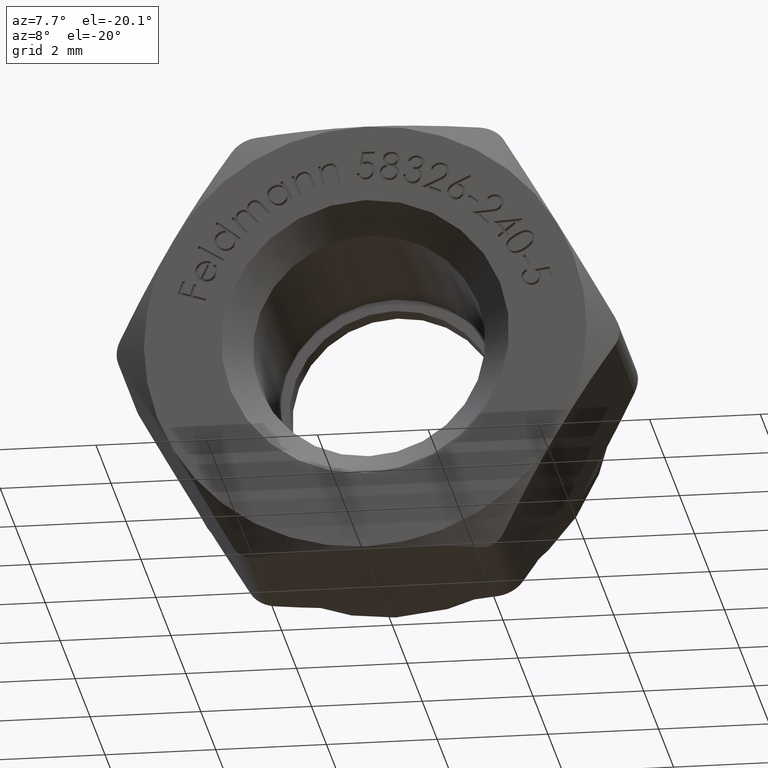
[diagram: clean part render]
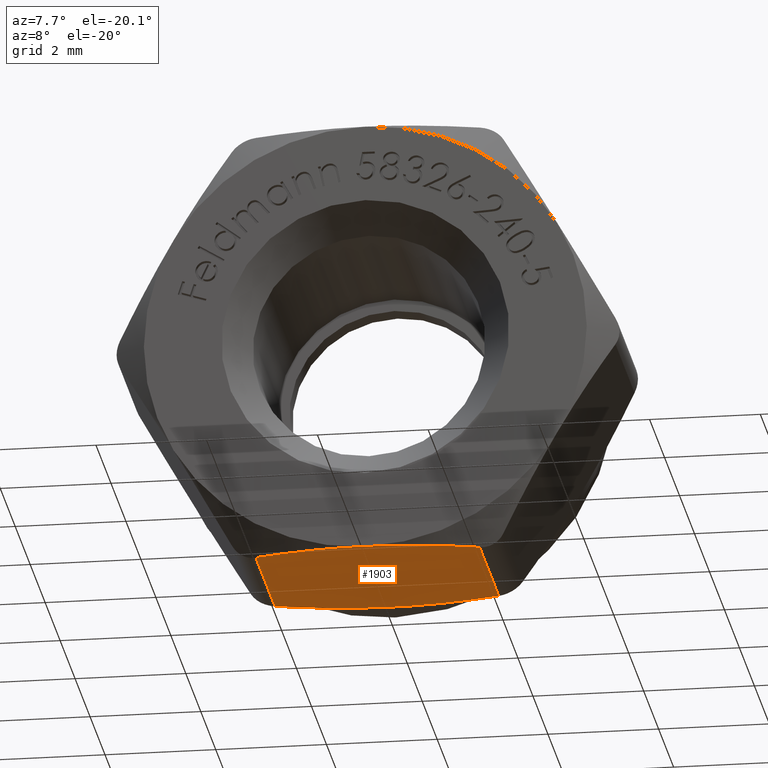
[diagram: same view with one face highlighted and labeled with its STEP entity id]
A machine part, auxiliary view. The second image highlights one B-rep face of the part: STEP entity #1903.
In plain terms, the highlighted planar face has unit normal (0, -0, 1).
Its self-contained STEP definition (entity closure, byte-faithful):
#47 = CARTESIAN_POINT ( 'NONE',  ( 0.3407670749224754325, -1.600000000000000311, -4.000000000000000000 ) ) ;
#422 = EDGE_LOOP ( 'NONE', ( #5678, #4673, #11869, #11565, #9910, #10226 ) ) ;
#977 = FACE_OUTER_BOUND ( 'NONE', #422, .T. ) ;
#1171 = VECTOR ( 'NONE', #11237, 1000.000000000000000 ) ;
#1318 = VECTOR ( 'NONE', #4560, 1000.000000000000000 ) ;
#1903 = ADVANCED_FACE ( 'NONE', ( #977 ), #13310, .F. ) ;
#1914 = CARTESIAN_POINT ( 'NONE',  ( 0.6874769505043225593, 1.569725163671228385, -4.000000000000000000 ) ) ;
#2242 = CARTESIAN_POINT ( 'NONE',  ( -0.6810796229150928305, 1.570385476301261019, -3.999999999999999112 ) ) ;
#2264 = CARTESIAN_POINT ( 'NONE',  ( -1.690875031870985978, -1.378193156530961083, -3.999999999999999112 ) ) ;
#3189 = CARTESIAN_POINT ( 'NONE',  ( 2.020725942163689393, 1.600000000000000089, -4.000000000000000000 ) ) ;
#3510 = CARTESIAN_POINT ( 'NONE',  ( -1.354635533954704263, -1.459650413179405470, -3.999999999999999112 ) ) ;
#3729 = VERTEX_POINT ( 'NONE', #5354 ) ;
#4296 = CARTESIAN_POINT ( 'NONE',  ( 0.3407670749224742113, 1.600000000000000089, -4.000000000000000000 ) ) ;
#4361 = VERTEX_POINT ( 'NONE', #8666 ) ;
#4448 = CARTESIAN_POINT ( 'NONE',  ( 2.309401076758501592, 1.600000000000000089, -4.000000000000000000 ) ) ;
#4560 = DIRECTION ( 'NONE',  ( 0.000000000000000000, -1.000000000000000000, 0.000000000000000000 ) ) ;
#4645 = LINE ( 'NONE', #3189, #1318 ) ;
#4673 = ORIENTED_EDGE ( 'NONE', *, *, #7958, .T. ) ;
#5085 = EDGE_CURVE ( 'NONE', #3729, #10718, #13108, .T. ) ;
#5354 = CARTESIAN_POINT ( 'NONE',  ( -7.511572993685799101E-16, -1.600000000000000089, -4.000000000000000000 ) ) ;
#5368 = CARTESIAN_POINT ( 'NONE',  ( 2.020725942163684508, 1.279037853389168422, -4.000000000000000000 ) ) ;
#5382 = EDGE_CURVE ( 'NONE', #11813, #4361, #4645, .T. ) ;
#5567 = CARTESIAN_POINT ( 'NONE',  ( 1.363688955534826386, 1.457761516669896062, -4.000000000000000000 ) ) ;
#5678 = ORIENTED_EDGE ( 'NONE', *, *, #5085, .T. ) ;
#5679 = CARTESIAN_POINT ( 'NONE',  ( 2.020725942163684508, 1.279037853389168422, -4.000000000000000000 ) ) ;
#6813 = CARTESIAN_POINT ( 'NONE',  ( -2.020725942165459976, 1.279037853388634849, -3.999999999999999112 ) ) ;
#6870 = CARTESIAN_POINT ( 'NONE',  ( -7.511572993685799101E-16, 1.600000000000000089, -4.000000000000000000 ) ) ;
#7543 = CARTESIAN_POINT ( 'NONE',  ( 1.363688955534828384, -1.457761516669896507, -4.000000000000000000 ) ) ;
#7696 = CARTESIAN_POINT ( 'NONE',  ( -7.511572993685799101E-16, -1.600000000000000089, -4.000000000000000000 ) ) ;
#7958 = EDGE_CURVE ( 'NONE', #10718, #11393, #15216, .T. ) ;
#8346 = CARTESIAN_POINT ( 'NONE',  ( -2.020725942163690281, 1.600000000000000089, -3.999999999999999112 ) ) ;
#8666 = CARTESIAN_POINT ( 'NONE',  ( 2.020725942163684508, -1.279037853389168422, -4.000000000000000000 ) ) ;
#9669 = CARTESIAN_POINT ( 'NONE',  ( -2.020725942165459976, -1.279037853388634849, -3.999999999999999112 ) ) ;
#9683 = EDGE_CURVE ( 'NONE', #4361, #3729, #10220, .T. ) ;
#9716 = CARTESIAN_POINT ( 'NONE',  ( -0.6810796229150928305, -1.570385476301261019, -3.999999999999999112 ) ) ;
#9750 = CARTESIAN_POINT ( 'NONE',  ( -1.690875031870986867, 1.378193156530960861, -3.999999999999999112 ) ) ;
#9910 = ORIENTED_EDGE ( 'NONE', *, *, #5382, .T. ) ;
#10013 = EDGE_CURVE ( 'NONE', #11540, #11813, #14310, .T. ) ;
#10083 = EDGE_CURVE ( 'NONE', #11393, #11540, #13988, .T. ) ;
#10220 = B_SPLINE_CURVE_WITH_KNOTS ( 'NONE', 3,
 ( #14881, #12306, #7543, #15105, #47, #7696 ),
 .UNSPECIFIED., .F., .F.,
 ( 4, 2, 4 ),
 ( 0.01158774036468465315, 0.01261038418917684659, 0.01363302801366904175 ),
 .UNSPECIFIED. ) ;
#10226 = ORIENTED_EDGE ( 'NONE', *, *, #9683, .T. ) ;
#10718 = VERTEX_POINT ( 'NONE', #11425 ) ;
#11237 = DIRECTION ( 'NONE',  ( -0.000000000000000000, 1.000000000000000000, -0.000000000000000000 ) ) ;
#11393 = VERTEX_POINT ( 'NONE', #11948 ) ;
#11425 = CARTESIAN_POINT ( 'NONE',  ( -2.020725942165459976, -1.279037853388634849, -3.999999999999999112 ) ) ;
#11540 = VERTEX_POINT ( 'NONE', #14759 ) ;
#11565 = ORIENTED_EDGE ( 'NONE', *, *, #10013, .T. ) ;
#11675 = AXIS2_PLACEMENT_3D ( 'NONE', #4448, #15689, #14316 ) ;
#11813 = VERTEX_POINT ( 'NONE', #5368 ) ;
#11869 = ORIENTED_EDGE ( 'NONE', *, *, #10083, .T. ) ;
#11948 = CARTESIAN_POINT ( 'NONE',  ( -2.020725942165459976, 1.279037853388634849, -3.999999999999999112 ) ) ;
#12306 = CARTESIAN_POINT ( 'NONE',  ( 1.694690894246857704, -1.377046083781289676, -4.000000000000000000 ) ) ;
#13108 = B_SPLINE_CURVE_WITH_KNOTS ( 'NONE', 3,
 ( #15853, #14527, #9716, #3510, #2264, #9669 ),
 .UNSPECIFIED., .F., .F.,
 ( 4, 2, 4 ),
 ( 0.01363302801366904175, 0.01465911120114715693, 0.01568519438862527038 ),
 .UNSPECIFIED. ) ;
#13310 = PLANE ( 'NONE',  #11675 ) ;
#13377 = CARTESIAN_POINT ( 'NONE',  ( -0.3419131451731718396, 1.600000000000000311, -3.999999999999999112 ) ) ;
#13988 = B_SPLINE_CURVE_WITH_KNOTS ( 'NONE', 3,
 ( #6813, #9750, #15929, #2242, #13377, #15825 ),
 .UNSPECIFIED., .F., .F.,
 ( 4, 2, 4 ),
 ( 0.004352695275485981424, 0.005377412951664502228, 0.006402130627843022163 ),
 .UNSPECIFIED. ) ;
#14310 = B_SPLINE_CURVE_WITH_KNOTS ( 'NONE', 3,
 ( #6870, #4296, #1914, #5567, #15525, #5679 ),
 .UNSPECIFIED., .F., .F.,
 ( 4, 2, 4 ),
 ( 0.006402130627843022163, 0.007423413518139193243, 0.008444696408435363455 ),
 .UNSPECIFIED. ) ;
#14316 = DIRECTION ( 'NONE',  ( 1.000000000000000000, 0.000000000000000000, -1.877893248421449775E-16 ) ) ;
#14527 = CARTESIAN_POINT ( 'NONE',  ( -0.3419131451731703963, -1.600000000000000311, -4.000000000000000000 ) ) ;
#14759 = CARTESIAN_POINT ( 'NONE',  ( -7.511572993685799101E-16, 1.600000000000000089, -4.000000000000000000 ) ) ;
#14881 = CARTESIAN_POINT ( 'NONE',  ( 2.020725942163684508, -1.279037853389168422, -4.000000000000000000 ) ) ;
#15105 = CARTESIAN_POINT ( 'NONE',  ( 0.6874769505043240025, -1.569725163671228607, -4.000000000000000000 ) ) ;
#15216 = LINE ( 'NONE', #8346, #1171 ) ;
#15525 = CARTESIAN_POINT ( 'NONE',  ( 1.694690894246857038, 1.377046083781290120, -4.000000000000000000 ) ) ;
#15689 = DIRECTION ( 'NONE',  ( 1.877893248421449775E-16, -0.000000000000000000, 1.000000000000000000 ) ) ;
#15825 = CARTESIAN_POINT ( 'NONE',  ( -7.511572993685799101E-16, 1.600000000000000089, -4.000000000000000000 ) ) ;
#15853 = CARTESIAN_POINT ( 'NONE',  ( -7.511572993685799101E-16, -1.600000000000000089, -4.000000000000000000 ) ) ;
#15929 = CARTESIAN_POINT ( 'NONE',  ( -1.354635533954705595, 1.459650413179406359, -4.000000000000000888 ) ) ;